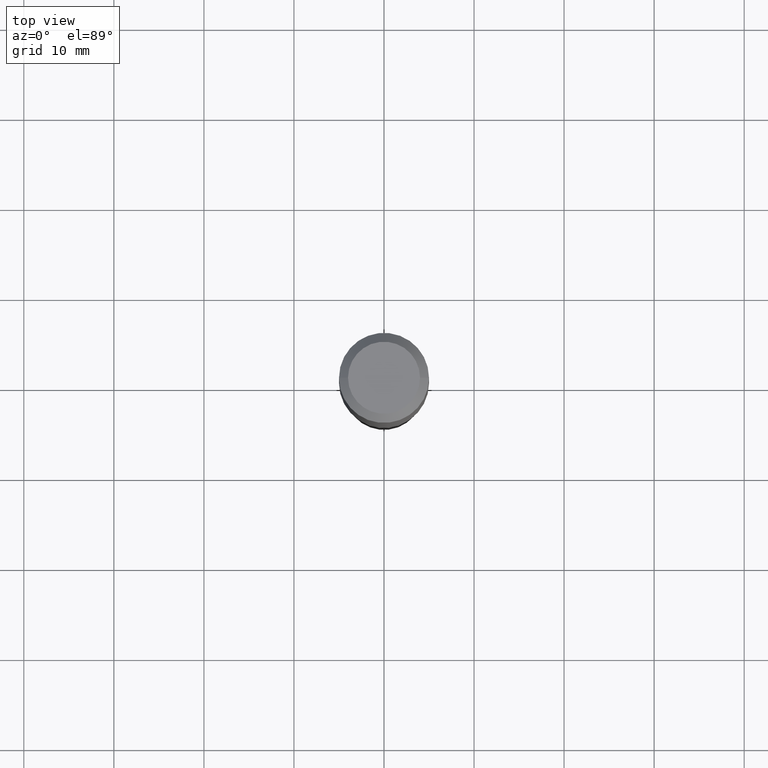
[diagram: clean part render]
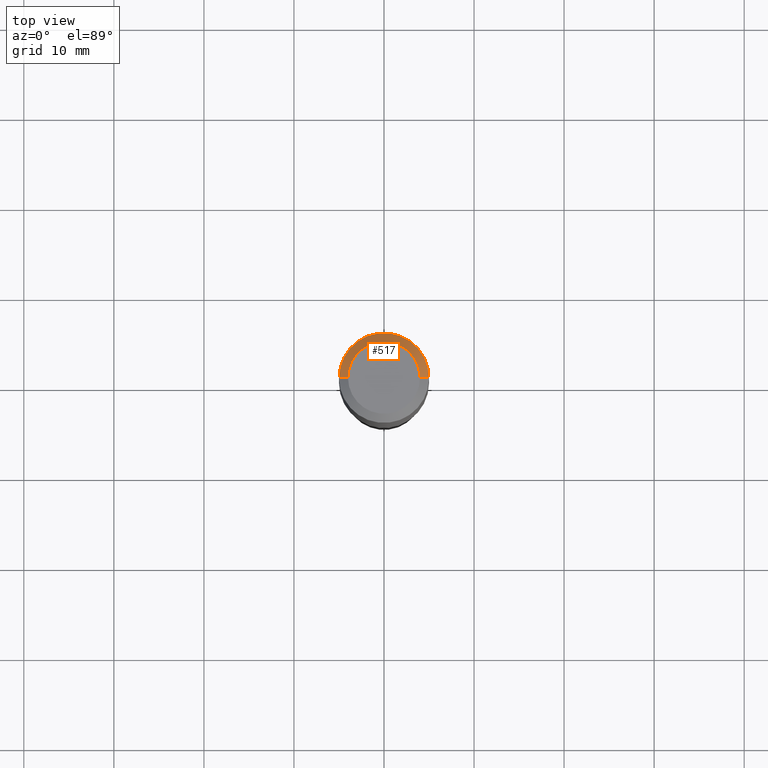
[diagram: same view with one face highlighted and labeled with its STEP entity id]
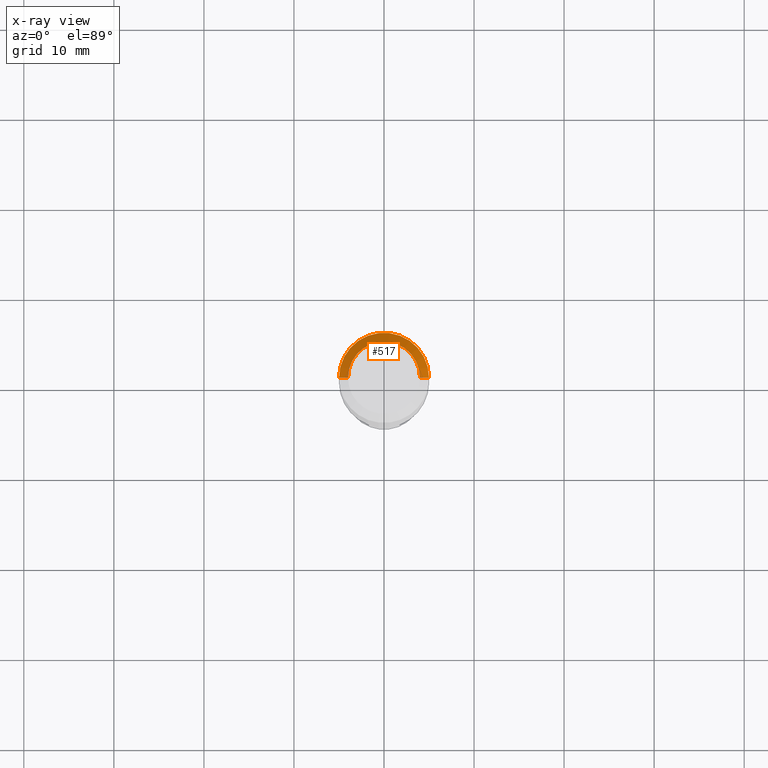
[diagram: x-ray of the same camera — body ghosted, the highlighted face saturated]
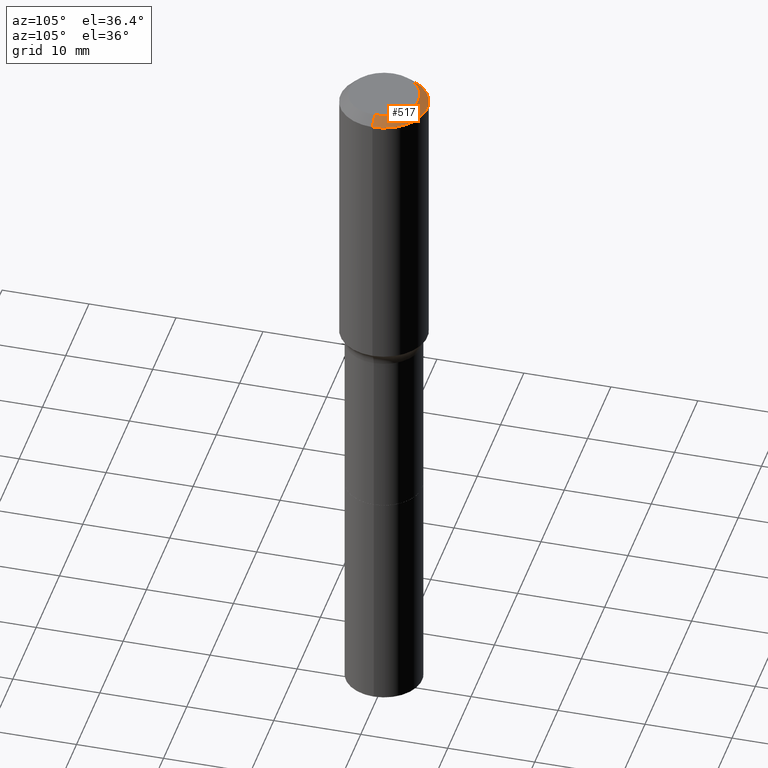
[diagram: same view with one face highlighted and labeled with its STEP entity id]
A machine part, top view. The second image highlights one B-rep face of the part: STEP entity #517.
The next image is the same camera in x-ray: the body ghosted, the highlighted face saturated — about 0% of this face is hidden behind the body in this view.
A second angle (auxiliary view) of the same face is appended — the face is thin or edge-on in the first view.
In plain terms, the highlighted conical surface has half-angle 45 deg.
Its self-contained STEP definition (entity closure, byte-faithful):
#6 = EDGE_CURVE ( 'NONE', #451, #30, #44, .T. ) ;
#9 = ORIENTED_EDGE ( 'NONE', *, *, #290, .F. ) ;
#11 = DIRECTION ( 'NONE',  ( -2.445468806185136597E-29, 3.491481338843145583E-15, 1.000000000000000000 ) ) ;
#21 = EDGE_CURVE ( 'NONE', #439, #30, #270, .T. ) ;
#22 = CARTESIAN_POINT ( 'NONE',  ( 9.627810689950955906E-31, -1.374596203102556794E-16, -0.03937000000000030059 ) ) ;
#24 = EDGE_LOOP ( 'NONE', ( #9, #276, #269, #117 ) ) ;
#29 = CARTESIAN_POINT ( 'NONE',  ( 0.1574800000000000089, -1.284169937930321386E-15, 3.855188123724205385E-18 ) ) ;
#30 = VERTEX_POINT ( 'NONE', #361 ) ;
#44 = CIRCLE ( 'NONE', #323, 0.1968500000000000527 ) ;
#47 = CARTESIAN_POINT ( 'NONE',  ( -0.1968500000000000527, 1.237136582792286422E-15, -0.03937000000000030059 ) ) ;
#60 = FACE_OUTER_BOUND ( 'NONE', #24, .T. ) ;
#91 = CARTESIAN_POINT ( 'NONE',  ( -0.1574800000000000089, 1.168406772637159815E-15, 3.855188123707939751E-18 ) ) ;
#114 = DIRECTION ( 'NONE',  ( -2.445468806185136597E-29, 3.491481338843145583E-15, 1.000000000000000000 ) ) ;
#117 = ORIENTED_EDGE ( 'NONE', *, *, #21, .F. ) ;
#128 = CARTESIAN_POINT ( 'NONE',  ( 0.1968500000000000527, -1.512055823412797583E-15, -0.03937000000000030059 ) ) ;
#135 = EDGE_CURVE ( 'NONE', #242, #451, #456, .T. ) ;
#190 = CARTESIAN_POINT ( 'NONE',  ( -9.427742298522567634E-47, 1.346031739168368355E-32, 3.855188123715870730E-18 ) ) ;
#217 = AXIS2_PLACEMENT_3D ( 'NONE', #190, #114, #268 ) ;
#242 = VERTEX_POINT ( 'NONE', #29 ) ;
#268 = DIRECTION ( 'NONE',  ( 1.000000000000000000, -6.982962677686265922E-15, 4.876223630392693006E-29 ) ) ;
#269 = ORIENTED_EDGE ( 'NONE', *, *, #6, .T. ) ;
#270 = LINE ( 'NONE', #47, #309 ) ;
#274 = VECTOR ( 'NONE', #492, 39.37007874015748143 ) ;
#275 = CONICAL_SURFACE ( 'NONE', #416, 0.1968500000000000527, 0.7853981633974450594 ) ;
#276 = ORIENTED_EDGE ( 'NONE', *, *, #135, .T. ) ;
#290 = EDGE_CURVE ( 'NONE', #242, #439, #333, .T. ) ;
#309 = VECTOR ( 'NONE', #441, 39.37007874015748143 ) ;
#323 = AXIS2_PLACEMENT_3D ( 'NONE', #488, #11, #403 ) ;
#333 = CIRCLE ( 'NONE', #217, 0.1574800000000000089 ) ;
#361 = CARTESIAN_POINT ( 'NONE',  ( -0.1968500000000000527, -9.076806189026671431E-16, -0.03937000000000030059 ) ) ;
#403 = DIRECTION ( 'NONE',  ( 1.000000000000000000, -6.982962677686266711E-15, 0.000000000000000000 ) ) ;
#409 = DIRECTION ( 'NONE',  ( 2.445468806185136597E-29, -3.491481338843145583E-15, -1.000000000000000000 ) ) ;
#416 = AXIS2_PLACEMENT_3D ( 'NONE', #22, #409, #494 ) ;
#421 = CARTESIAN_POINT ( 'NONE',  ( 0.1968500000000000527, -1.487948651171581996E-15, -0.03937000000000030059 ) ) ;
#439 = VERTEX_POINT ( 'NONE', #91 ) ;
#441 = DIRECTION ( 'NONE',  ( -0.7071067811865452413, 2.468850131082233000E-15, -0.7071067811865497932 ) ) ;
#451 = VERTEX_POINT ( 'NONE', #128 ) ;
#456 = LINE ( 'NONE', #421, #274 ) ;
#488 = CARTESIAN_POINT ( 'NONE',  ( 9.627810689950955906E-31, -1.374596203102556794E-16, -0.03937000000000030059 ) ) ;
#492 = DIRECTION ( 'NONE',  ( 0.7071067811865452413, -7.319954787623248157E-15, -0.7071067811865497932 ) ) ;
#494 = DIRECTION ( 'NONE',  ( -1.000000000000000000, 6.982962677686266711E-15, 0.000000000000000000 ) ) ;
#517 = ADVANCED_FACE ( 'NONE', ( #60 ), #275, .T. ) ;